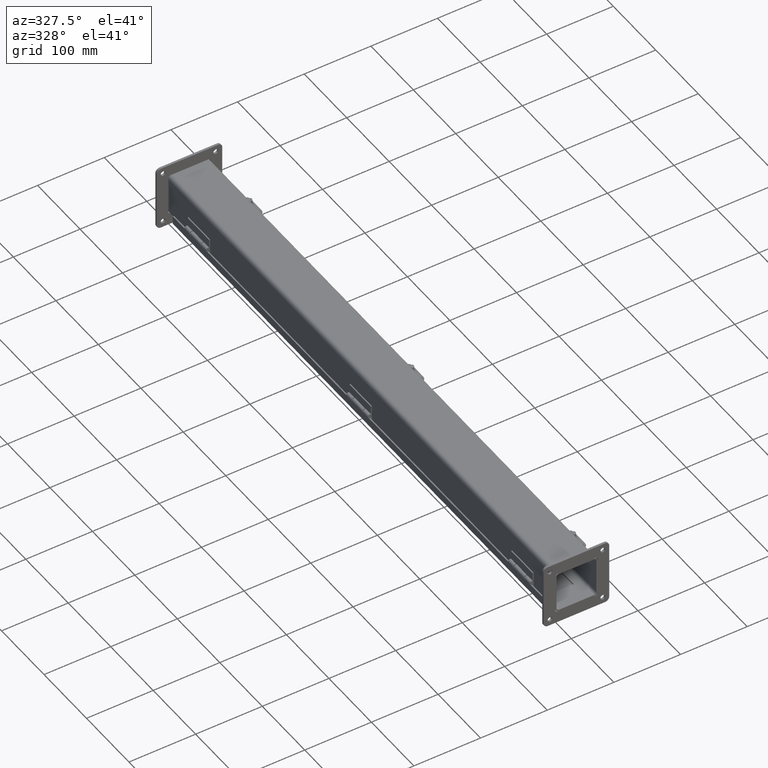
[diagram: clean part render]
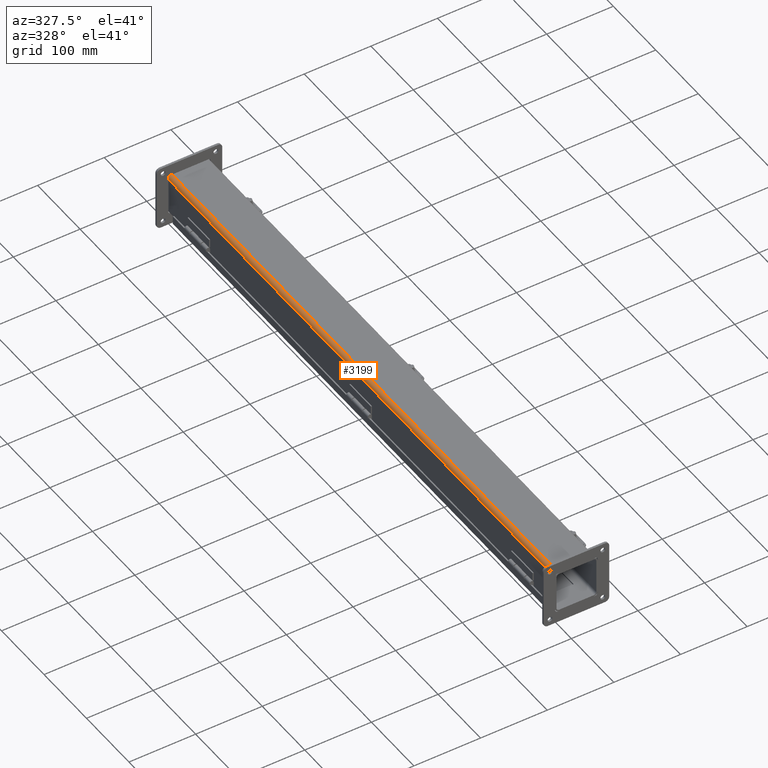
[diagram: same view with one face highlighted and labeled with its STEP entity id]
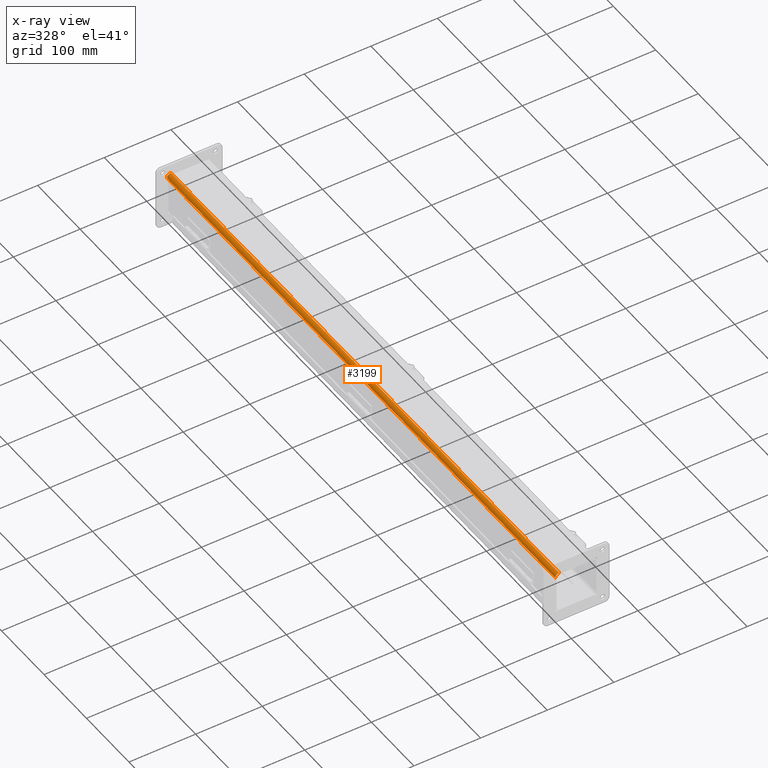
[diagram: x-ray of the same camera — body ghosted, the highlighted face saturated]
A machine part, auxiliary view. The second image highlights one B-rep face of the part: STEP entity #3199.
The next image is the same camera in x-ray: the body ghosted, the highlighted face saturated — about 0% of this face is hidden behind the body in this view.
In plain terms, the highlighted cylindrical surface (edge-blend (fillet) strip) has radius 5.8483 mm, axis along (0, -1, -0).
Its self-contained STEP definition (entity closure, byte-faithful):
#336=FACE_OUTER_BOUND($,#513,.T.);
#513=EDGE_LOOP($,(#2251,#2252,#2253,#2254));
#727=CIRCLE($,#3421,0.23025);
#728=CIRCLE($,#3422,0.23025);
#881=LINE($,#4832,#1191);
#882=LINE($,#4836,#1192);
#1191=VECTOR($,#3842,36.);
#1192=VECTOR($,#3845,36.);
#1484=VERTEX_POINT($,#4820);
#1486=VERTEX_POINT($,#4828);
#1487=VERTEX_POINT($,#4833);
#1488=VERTEX_POINT($,#4835);
#1783=EDGE_CURVE($,#1484,#1486,#881,.T.);
#1784=EDGE_CURVE($,#1487,#1484,#727,.T.);
#1785=EDGE_CURVE($,#1488,#1487,#882,.T.);
#1786=EDGE_CURVE($,#1486,#1488,#728,.T.);
#2251=ORIENTED_EDGE($,*,*,#1783,.F.);
#2252=ORIENTED_EDGE($,*,*,#1784,.F.);
#2253=ORIENTED_EDGE($,*,*,#1785,.F.);
#2254=ORIENTED_EDGE($,*,*,#1786,.F.);
#3011=CYLINDRICAL_SURFACE($,#3420,0.23025);
#3199=ADVANCED_FACE($,(#336),#3011,.T.);
#3420=AXIS2_PLACEMENT_3D($,#4831,#3840,#3841);
#3421=AXIS2_PLACEMENT_3D($,#4834,#3843,#3844);
#3422=AXIS2_PLACEMENT_3D($,#4837,#3846,#3847);
#3840=DIRECTION('center_axis',(3.05966975290398E-016,-1.,0.));
#3841=DIRECTION('ref_axis',(0.,0.,1.));
#3842=DIRECTION($,(-3.0267214751144E-016,1.,-3.12814494456074E-033));
#3843=DIRECTION('center_axis',(3.05966975290398E-016,-1.,0.));
#3844=DIRECTION('ref_axis',(3.3411005212415E-014,0.,1.));
#3845=DIRECTION($,(3.01110356634994E-016,-1.,0.));
#3846=DIRECTION('center_axis',(-3.05966975290398E-016,1.,0.));
#3847=DIRECTION('ref_axis',(-1.,0.,9.49176284443611E-017));
#4820=CARTESIAN_POINT('',(-1.25,-18.,-0.15625));
#4828=CARTESIAN_POINT('',(-1.25000000000001,18.,-0.15625));
#4831=CARTESIAN_POINT('Origin',(-1.01975,0.,-0.15625));
#4832=CARTESIAN_POINT($,(-1.25,3.88706158817715E-016,-0.15625));
#4833=CARTESIAN_POINT('',(-1.01974999999999,-18.,0.074));
#4834=CARTESIAN_POINT('Origin',(-1.01975,-18.,-0.15625));
#4835=CARTESIAN_POINT('',(-1.01975000000001,18.,0.074));
#4836=CARTESIAN_POINT($,(-1.01975,9.,0.074));
#4837=CARTESIAN_POINT('Origin',(-1.01975000000001,18.,-0.15625));